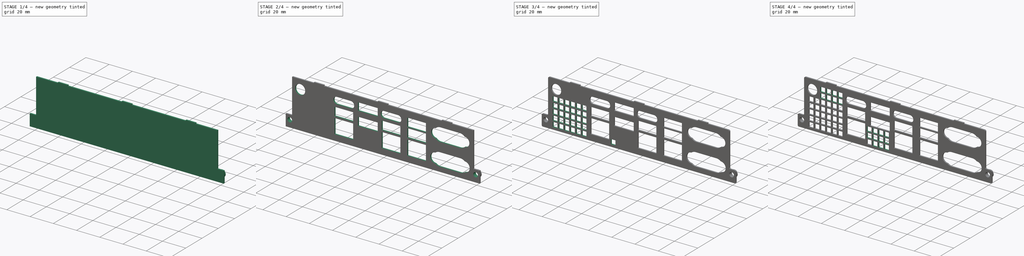
[diagram: build sequence overview — one tinted view per stage of 4, left to right]
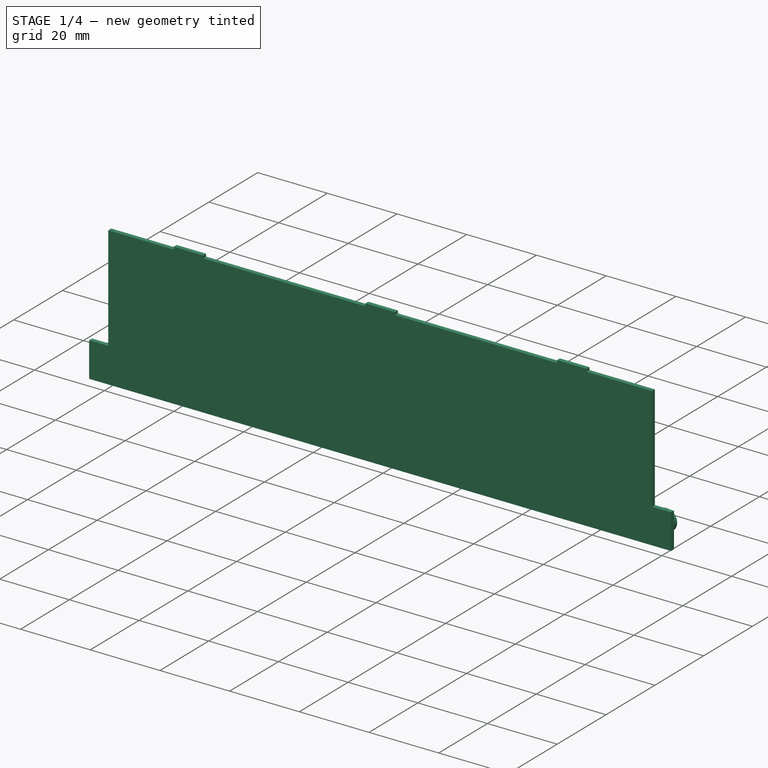
[diagram: stage 1 of 4 — iso view after this stage's code; geometry added in this stage tinted green]
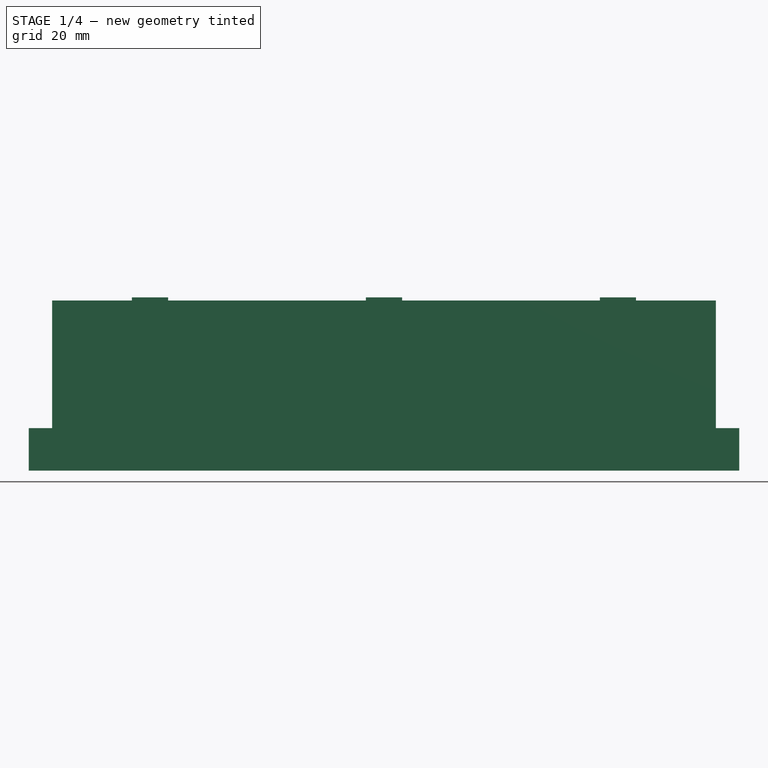
[diagram: stage 1 of 4 — front view after this stage's code; geometry added in this stage tinted green]
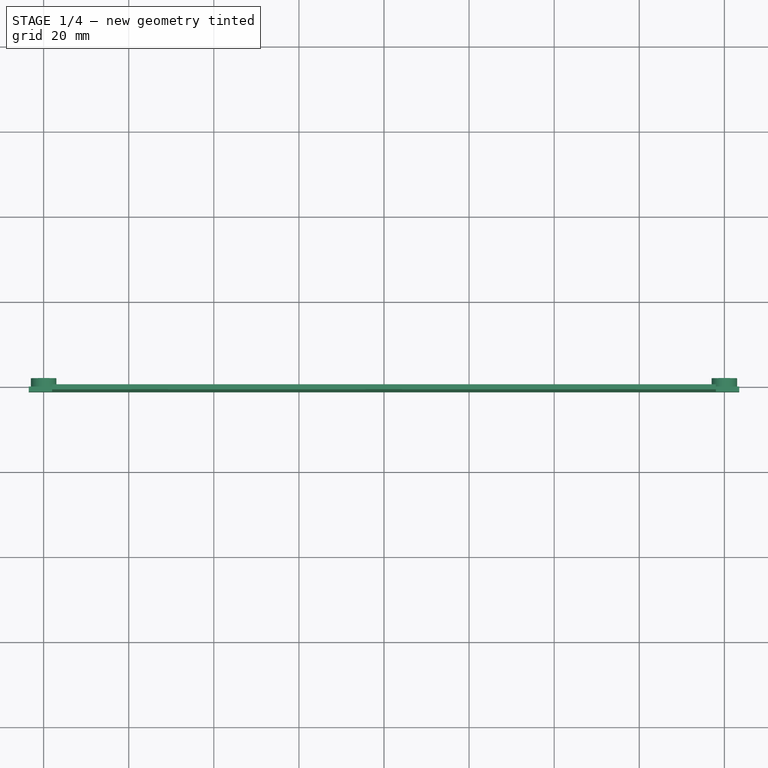
[diagram: stage 1 of 4 — top view after this stage's code; geometry added in this stage tinted green]
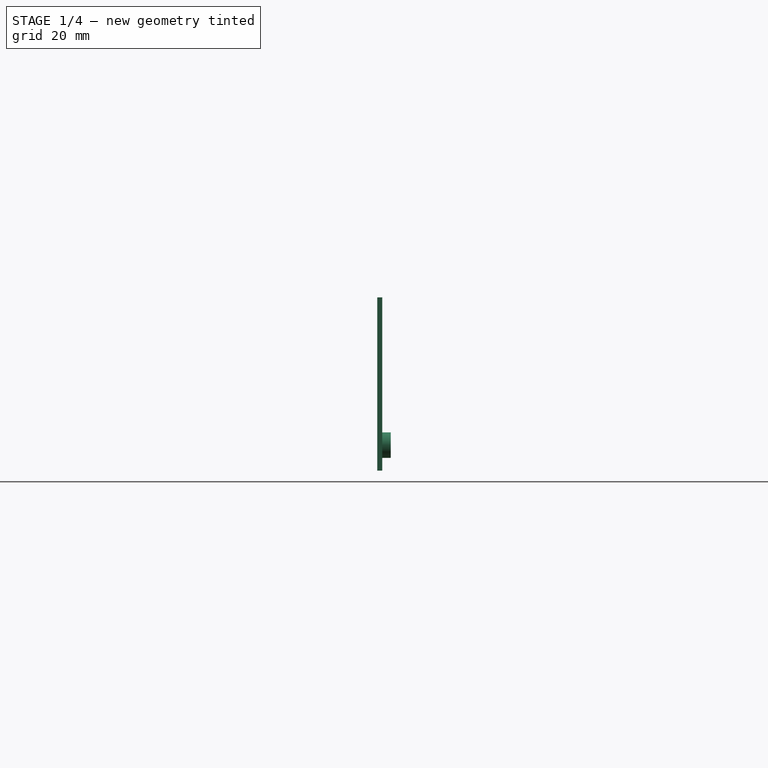
[diagram: stage 1 of 4 — right view after this stage's code; geometry added in this stage tinted green]
FCSTD DOCUMENT  (FreeCAD 1.0R39319 (Git))
Label: iosheild_export
License: All rights reserved
LicenseURL: https://en.wikipedia.org/wiki/All_rights_reserved
objects: Sketcher::SketchObject×7, PartDesign::LinearPattern×6, PartDesign::Pocket×5, PartDesign::MultiTransform×3, Part::Extrusion×2, Part::MultiFuse×1, PartDesign::FeatureBase×1, PartDesign::Fillet×1, PartDesign::Body×1
note: 56 computed .brp shape members not serialized (recipe doc carries the construction recipe); baked Part::Feature solids carry a one-line shape summary decoded from their .brp

FEATURE [Sketcher::SketchObject] Sketch001  label="outline"
  ArcFitTolerance = 1e-06
  AttachmentSupport = -> [XZ_Plane016]
  FullyConstrained = true
  MakeInternals = false
  MapMode = 5
  Placement = pos=(0,0,0) rot=(1,0,0;1.5708rad)
  sketch-geometry (20):
    g0: LineSegment StartX=-83.5 StartY=0 StartZ=0 EndX=83.5 EndY=0 EndZ=0
    g1: LineSegment StartX=83.5 StartY=0 StartZ=0 EndX=83.5 EndY=10 EndZ=0
    g2: LineSegment StartX=83.5 StartY=10 StartZ=0 EndX=78 EndY=10 EndZ=0
    g3: LineSegment StartX=78 StartY=10 StartZ=0 EndX=78 EndY=40 EndZ=0
    g4: LineSegment StartX=78 StartY=40 StartZ=0 EndX=59.25 EndY=40 EndZ=0
    g5: LineSegment StartX=59.25 StartY=40 StartZ=0 EndX=59.25 EndY=40.75 EndZ=0
    g6: LineSegment StartX=59.25 StartY=40.75 StartZ=0 EndX=50.75 EndY=40.75 EndZ=0
    g7: LineSegment StartX=50.75 StartY=40.75 StartZ=0 EndX=50.75 EndY=40 EndZ=0
    g8: LineSegment StartX=50.75 StartY=40 StartZ=0 EndX=4.25 EndY=40 EndZ=0
    g9: LineSegment StartX=4.25 StartY=40 StartZ=0 EndX=4.25 EndY=40.75 EndZ=0
    g10: LineSegment StartX=4.25 StartY=40.75 StartZ=0 EndX=-4.25 EndY=40.75 EndZ=0
    g11: LineSegment StartX=-4.25 StartY=40.75 StartZ=0 EndX=-4.25 EndY=40 EndZ=0
    g12: LineSegment StartX=-4.25 StartY=40 StartZ=0 EndX=-50.75 EndY=40 EndZ=0
    g13: LineSegment StartX=-50.75 StartY=40 StartZ=0 EndX=-50.75 EndY=40.75 EndZ=0
    g14: LineSegment StartX=-50.75 StartY=40.75 StartZ=0 EndX=-59.25 EndY=40.75 EndZ=0
    g15: LineSegment StartX=-59.25 StartY=40.75 StartZ=0 EndX=-59.25 EndY=40 EndZ=0
    g16: LineSegment StartX=-59.25 StartY=40 StartZ=0 EndX=-78 EndY=40 EndZ=0
    g17: LineSegment StartX=-78 StartY=40 StartZ=0 EndX=-78 EndY=10 EndZ=0
    g18: LineSegment StartX=-78 StartY=10 StartZ=0 EndX=-83.5 EndY=10 EndZ=0
    g19: LineSegment StartX=-83.5 StartY=10 StartZ=0 EndX=-83.5 EndY=0 EndZ=0
  constraints (60):
    c: Horizontal(g0)
    c: Coincident(g0,g1)
    c: Vertical(g1)
    c: Coincident(g1,g2)
    c: Horizontal(g2)
    c: Coincident(g2,g3)
    c: Coincident(g3,g4)
    c: Coincident(g4,g5)
    c: Vertical(g5)
    c: Coincident(g5,g6)
    c: Horizontal(g6)
    c: Coincident(g6,g7)
    c: Coincident(g7,g8)
    c: Horizontal(g8)
    c: Coincident(g8,g9)
    c: Coincident(g9,g10)
    c: Coincident(g10,g11)
    c: Coincident(g11,g12)
    c: Coincident(g12,g13)
    c: Coincident(g13,g14)
    c: Horizontal(g14)
    c: Coincident(g14,g15)
    c: Coincident(g15,g16)
    c: Horizontal(g16)
    c: Coincident(g16,g17)
    c: Vertical(g17)
    c: Coincident(g17,g18)
    c: Coincident(g18,g19)
    c: Coincident(g19,g0)
    c: Vertical(g19)
    c: Vertical(g15)
    c: Vertical(g13)
    c: Vertical(g11)
    c: Vertical(g9)
    c: Vertical(g7)
    c: Vertical(g3)
    c: Horizontal(g18)
    c: Horizontal(g12)
    c: Horizontal(g10)
    c: Horizontal(g4)
    c: DistanceX(g0,g0) = 167
    c: DistanceY(g0,g16) = 40
    c: DistanceX(g16,g3) = 156
    c: DistanceY(g0,g18) = 10
    c: DistanceY(g0,g1) = 10
    c: DistanceX(g16,g15) = 18.75
    c: DistanceX(g4,g3) = 18.75
    c: DistanceX(g6,g6) = 8.5
    c: DistanceX(g10,g10) = 8.5
    c: DistanceX(g14,g14) = 8.5
    c: DistanceX(g18,g18) = 5.5
    c: DistanceY(g4,g5) = 0.75
    c: DistanceY(g7,g6) = 0.75
    c: DistanceY(g8,g9) = 0.75
    c: DistanceY(g11,g10) = 0.75
    c: DistanceY(g12,g13) = 0.75
    c: DistanceY(g15,g14) = 0.75
    c: PointOnObject(g0,g-1)
    c: DistanceX(g0,g-1) = 83.5
    c: DistanceX(g12,g12) = 46.5
FEATURE [Sketcher::SketchObject] Sketch002  label="screw holes"
  ArcFitTolerance = 1e-06
  AttachmentSupport = -> [XZ_Plane016]
  FullyConstrained = true
  MakeInternals = false
  MapMode = 5
  Placement = pos=(0,0,0) rot=(1,0,0;1.5708rad)
  sketch-geometry (2):
    g0: Circle CenterX=-80 CenterY=6 CenterZ=0 NormalX=0 NormalY=0 NormalZ=1 AngleXU=0 Radius=2
    g1: Circle CenterX=80 CenterY=6 CenterZ=0 NormalX=0 NormalY=0 NormalZ=1 AngleXU=0 Radius=2
  constraints (6):
    c: Diameter(g0) = 4
    c: Diameter(g1) = 4
    c: DistanceY(g-1,g1) = 6
    c: DistanceX(g-1,g1) = 80
    c: DistanceX(g0,g-1) = 80
    c: DistanceY(g-1,g0) = 6
FEATURE [Sketcher::SketchObject] Sketch003  label="screw holes - wider"
  ArcFitTolerance = 1e-06
  AttachmentSupport = -> [XZ_Plane016]
  FullyConstrained = true
  MakeInternals = false
  MapMode = 5
  Placement = pos=(0,0,0) rot=(1,0,0;1.5708rad)
  sketch-geometry (2):
    g0: Circle CenterX=-80 CenterY=6 CenterZ=0 NormalX=0 NormalY=0 NormalZ=1 AngleXU=0 Radius=3
    g1: Circle CenterX=80 CenterY=6 CenterZ=0 NormalX=0 NormalY=0 NormalZ=1 AngleXU=0 Radius=3
  constraints (6):
    c: Diameter(g0) = 6
    c: Diameter(g1) = 6
    c: DistanceY(g-1,g1) = 6
    c: DistanceX(g-1,g1) = 80
    c: DistanceX(g0,g-1) = 80
    c: DistanceY(g-1,g0) = 6
FEATURE [Part::Extrusion] Extrude001  label="ExtrudedOutline"
  Base = -> Sketch001
  Dir = (0,-1,2e-16)
  DirMode = 2
  FaceMakerClass = Part::FaceMakerBullseye
  FaceMakerMode = 3
  LengthFwd = 1.2
  LengthRev = 0
  Solid = true
  Symmetric = false
FEATURE [Part::Extrusion] Extrude002  label="ExtrudedScrewHoles"
  Base = -> Sketch003
  Dir = (0,-1,2e-16)
  DirMode = 2
  FaceMakerClass = Part::FaceMakerBullseye
  FaceMakerMode = 3
  LengthFwd = 0
  LengthRev = 2
  Solid = true
  Symmetric = false
FEATURE [Part::MultiFuse] Fusion
  Shapes = -> [Extrude001,Extrude002]
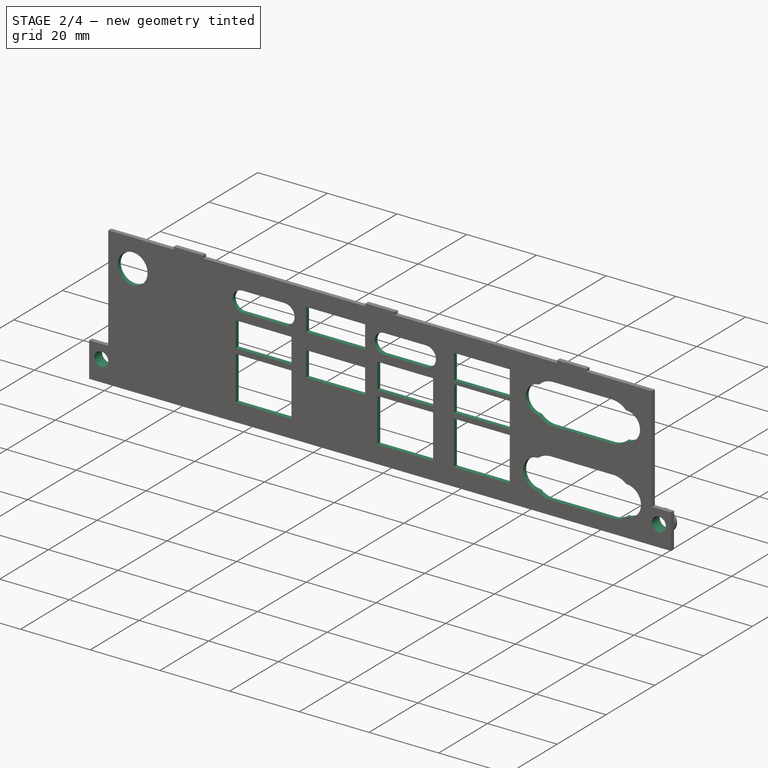
[diagram: stage 2 of 4 — iso view after this stage's code; geometry added in this stage tinted green]
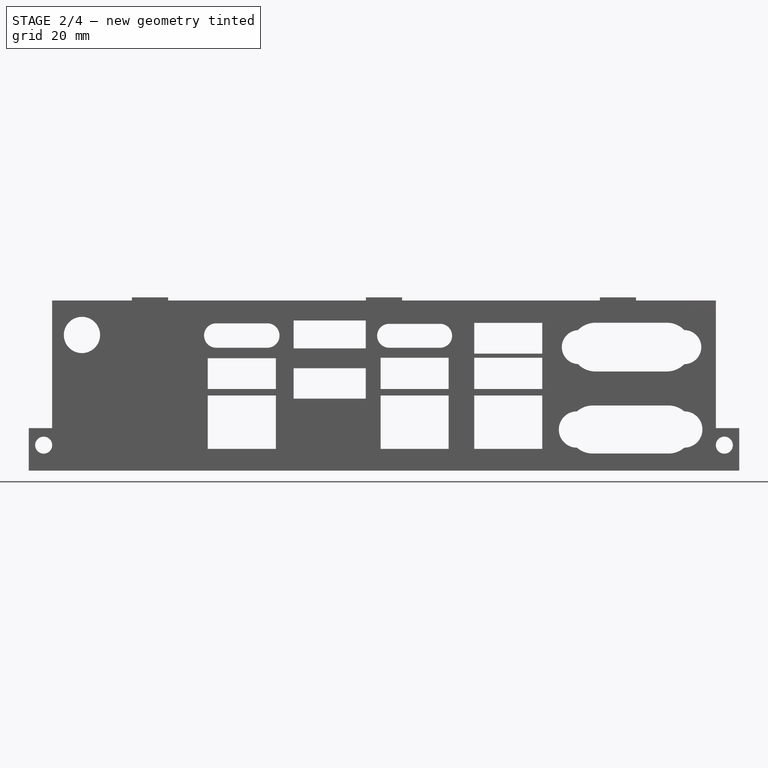
[diagram: stage 2 of 4 — front view after this stage's code; geometry added in this stage tinted green]
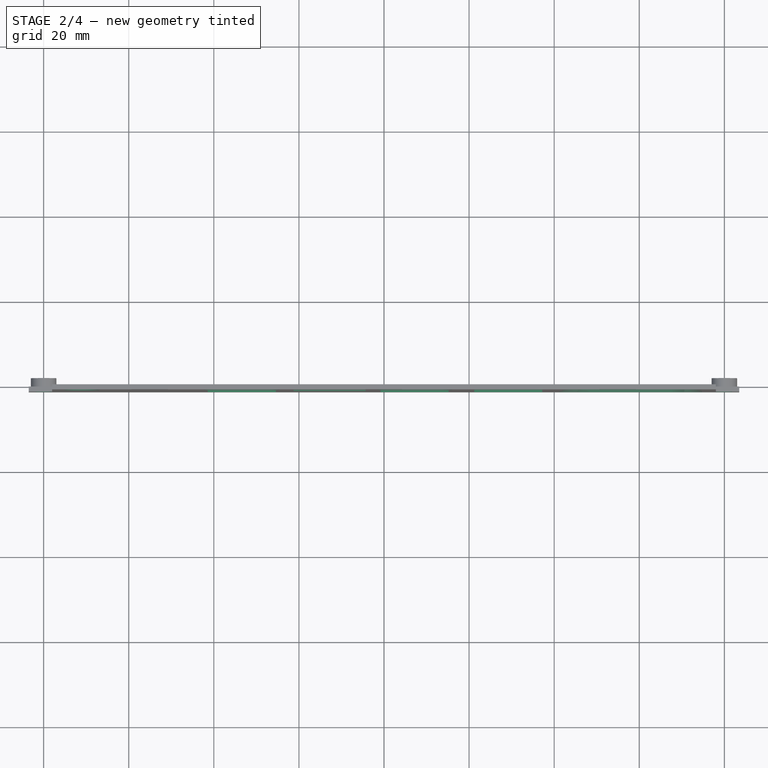
[diagram: stage 2 of 4 — top view after this stage's code; geometry added in this stage tinted green]
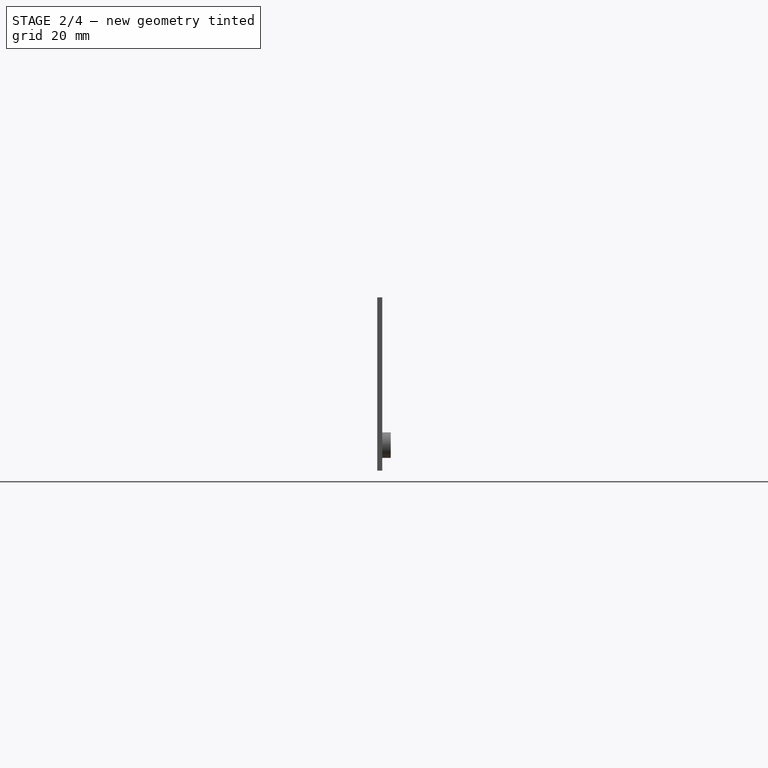
[diagram: stage 2 of 4 — right view after this stage's code; geometry added in this stage tinted green]
FEATURE [Sketcher::SketchObject] Sketch  label="ConnectorHoles"
  ArcFitTolerance = 1e-06
  AttachmentOffset = pos=(78,0,0) rot=(0,0,1;0rad)
  AttachmentSupport = -> [Fusion]
  FullyConstrained = true
  MakeInternals = false
  MapMode = 3
  Placement = pos=(78,0,0) rot=(1,0,0;1.5708rad)
  sketch-geometry (61):
    g0: Circle CenterX=-149 CenterY=31.9 CenterZ=0 NormalX=0 NormalY=0 NormalZ=1 AngleXU=0 Radius=4.26
    g1: ArcOfCircle CenterX=-32.2053 CenterY=29.0452 CenterZ=0 NormalX=0 NormalY=0 NormalZ=1 AngleXU=0 Radius=4 StartAngle=1.622 EndAngle=4.66362
    g2: ArcOfCircle CenterX=-7.42028 CenterY=29.0469 CenterZ=0 NormalX=0 NormalY=0 NormalZ=1 AngleXU=0 Radius=4 StartAngle=4.71239 EndAngle=7.85245
    g3: ArcOfCircle CenterX=-28.2975 CenterY=29.05 CenterZ=0 NormalX=0 NormalY=0 NormalZ=1 AngleXU=0 Radius=5.73 StartAngle=1.5708 EndAngle=2.37131
    g4: ArcOfCircle CenterX=-11.52 CenterY=29.05 CenterZ=0 NormalX=0 NormalY=0 NormalZ=1 AngleXU=0 Radius=5.73 StartAngle=4.71239 EndAngle=5.50971
    g5: LineSegment StartX=-28.2975 StartY=34.78 StartZ=0 EndX=-11.5175 EndY=34.78 EndZ=0
    g6: LineSegment StartX=-28.3 StartY=23.32 StartZ=0 EndX=-11.52 EndY=23.32 EndZ=0
    g7: ArcOfCircle CenterX=-32.64 CenterY=9.67349 CenterZ=0 NormalX=0 NormalY=0 NormalZ=1 AngleXU=0 Radius=4.27 StartAngle=1.5708 EndAngle=4.71239
    g8: ArcOfCircle CenterX=-7.42 CenterY=9.67697 CenterZ=0 NormalX=0 NormalY=0 NormalZ=1 AngleXU=0 Radius=4.27 StartAngle=4.71239 EndAngle=7.85586
    g9: ArcOfCircle CenterX=-28.95 CenterY=9.67349 CenterZ=0 NormalX=0 NormalY=0 NormalZ=1 AngleXU=0 Radius=5.64349 StartAngle=1.5708 EndAngle=2.28346
    g10: ArcOfCircle CenterX=-11.114 CenterY=9.67349 CenterZ=0 NormalX=0 NormalY=0 NormalZ=1 AngleXU=0 Radius=5.64349 StartAngle=4.71239 EndAngle=5.42599
    g11: LineSegment StartX=-28.95 StartY=15.317 StartZ=0 EndX=-11.1 EndY=15.317 EndZ=0
    g12: LineSegment StartX=-28.95 StartY=4.03 StartZ=0 EndX=-11.114 EndY=4.03 EndZ=0
    g13: LineSegment StartX=-56.8 StartY=34.74 StartZ=0 EndX=-56.8 EndY=27.51 EndZ=0
    g14: LineSegment StartX=-56.8 StartY=27.51 StartZ=0 EndX=-40.8 EndY=27.51 EndZ=0
    g15: LineSegment StartX=-40.8 StartY=27.51 StartZ=0 EndX=-40.8 EndY=34.74 EndZ=0
    g16: LineSegment StartX=-40.8 StartY=34.74 StartZ=0 EndX=-56.8 EndY=34.74 EndZ=0
    g17: LineSegment StartX=-56.8 StartY=26.55 StartZ=0 EndX=-56.8 EndY=19.19 EndZ=0
    g18: LineSegment StartX=-56.8 StartY=19.19 StartZ=0 EndX=-40.8 EndY=19.19 EndZ=0
    g19: LineSegment StartX=-40.8 StartY=19.19 StartZ=0 EndX=-40.8 EndY=26.55 EndZ=0
    g20: LineSegment StartX=-40.8 StartY=26.55 StartZ=0 EndX=-56.8 EndY=26.55 EndZ=0
    g21: LineSegment StartX=-56.8 StartY=17.68 StartZ=0 EndX=-56.8 EndY=5.12 EndZ=0
    g22: LineSegment StartX=-56.8 StartY=5.12 StartZ=0 EndX=-40.8 EndY=5.12 EndZ=0
    g23: LineSegment StartX=-40.8 StartY=5.12 StartZ=0 EndX=-40.8 EndY=17.68 EndZ=0
    g24: LineSegment StartX=-40.8 StartY=17.68 StartZ=0 EndX=-56.8 EndY=17.68 EndZ=0
    g25: ArcOfCircle CenterX=-105.43 CenterY=31.77 CenterZ=0 NormalX=0 NormalY=0 NormalZ=1 AngleXU=0 Radius=2.87 StartAngle=4.71239 EndAngle=7.85398
    g26: ArcOfCircle CenterX=-117.43 CenterY=31.77 CenterZ=0 NormalX=0 NormalY=0 NormalZ=1 AngleXU=0 Radius=2.87 StartAngle=1.5708 EndAngle=4.71239
    g27: LineSegment StartX=-105.43 StartY=28.9 StartZ=0 EndX=-117.43 EndY=28.9 EndZ=0
    g28: LineSegment StartX=-105.43 StartY=34.64 StartZ=0 EndX=-117.43 EndY=34.64 EndZ=0
    g29: ArcOfCircle CenterX=-76.8 CenterY=31.71 CenterZ=0 NormalX=0 NormalY=0 NormalZ=1 AngleXU=0 Radius=2.81 StartAngle=1.5708 EndAngle=4.71239
    g30: ArcOfCircle CenterX=-64.8 CenterY=31.71 CenterZ=0 NormalX=0 NormalY=0 NormalZ=1 AngleXU=0 Radius=2.81 StartAngle=4.71239 EndAngle=7.85398
    g31: LineSegment StartX=-76.8 StartY=34.52 StartZ=0 EndX=-64.8 EndY=34.52 EndZ=0
    g32: LineSegment StartX=-76.8 StartY=28.9 StartZ=0 EndX=-64.8 EndY=28.9 EndZ=0
    g33: LineSegment StartX=-119.43 StartY=26.42 StartZ=0 EndX=-119.43 EndY=19.19 EndZ=0
    g34: LineSegment StartX=-119.43 StartY=19.19 StartZ=0 EndX=-103.43 EndY=19.19 EndZ=0
    g35: LineSegment StartX=-103.43 StartY=19.19 StartZ=0 EndX=-103.43 EndY=26.42 EndZ=0
    g36: LineSegment StartX=-103.43 StartY=26.42 StartZ=0 EndX=-119.43 EndY=26.42 EndZ=0
    g37: LineSegment StartX=-103.43 StartY=5.12 StartZ=0 EndX=-103.43 EndY=17.68 EndZ=0
    g38: LineSegment StartX=-103.43 StartY=17.68 StartZ=0 EndX=-119.43 EndY=17.68 EndZ=0
    g39: LineSegment StartX=-119.43 StartY=17.68 StartZ=0 EndX=-119.43 EndY=5.12 EndZ=0
    g40: LineSegment StartX=-119.43 StartY=5.12 StartZ=0 EndX=-103.43 EndY=5.12 EndZ=0
    g41: LineSegment StartX=-99.25 StartY=35.31 StartZ=0 EndX=-99.25 EndY=28.76 EndZ=0
    g42: LineSegment StartX=-99.25 StartY=28.76 StartZ=0 EndX=-82.3 EndY=28.76 EndZ=0
    g43: LineSegment StartX=-82.3 StartY=28.76 StartZ=0 EndX=-82.3 EndY=35.31 EndZ=0
    g44: LineSegment StartX=-82.3 StartY=35.31 StartZ=0 EndX=-99.25 EndY=35.31 EndZ=0
    g45: LineSegment StartX=-99.25 StartY=24.09 StartZ=0 EndX=-99.25 EndY=16.95 EndZ=0
    g46: LineSegment StartX=-99.25 StartY=16.95 StartZ=0 EndX=-82.3 EndY=16.95 EndZ=0
    g47: LineSegment StartX=-82.3 StartY=16.95 StartZ=0 EndX=-82.3 EndY=24.09 EndZ=0
    g48: LineSegment StartX=-82.3 StartY=24.09 StartZ=0 EndX=-99.25 EndY=24.09 EndZ=0
    g49: LineSegment StartX=-78.8 StartY=26.55 StartZ=0 EndX=-78.8 EndY=19.19 EndZ=0
    g50: LineSegment StartX=-78.8 StartY=19.19 StartZ=0 EndX=-62.8 EndY=19.19 EndZ=0
    g51: LineSegment StartX=-62.8 StartY=19.19 StartZ=0 EndX=-62.8 EndY=26.55 EndZ=0
    g52: LineSegment StartX=-62.8 StartY=26.55 StartZ=0 EndX=-78.8 EndY=26.55 EndZ=0
    g53: LineSegment StartX=-78.8 StartY=17.68 StartZ=0 EndX=-78.8 EndY=5.12 EndZ=0
    g54: LineSegment StartX=-78.8 StartY=5.12 StartZ=0 EndX=-62.8 EndY=5.12 EndZ=0
    g55: LineSegment StartX=-62.8 StartY=5.12 StartZ=0 EndX=-62.8 EndY=17.68 EndZ=0
    g56: LineSegment StartX=-62.8 StartY=17.68 StartZ=0 EndX=-78.8 EndY=17.68 EndZ=0
    g57: ArcOfCircle CenterX=-28.2975 CenterY=29.05 CenterZ=0 NormalX=0 NormalY=0 NormalZ=1 AngleXU=0 Radius=5.73 StartAngle=3.91431 EndAngle=4.71195
    g58: ArcOfCircle CenterX=-11.52 CenterY=29.05 CenterZ=0 NormalX=0 NormalY=0 NormalZ=1 AngleXU=0 Radius=5.73 StartAngle=0.771946 EndAngle=1.57036
    g59: ArcOfCircle CenterX=-11.114 CenterY=9.67349 CenterZ=0 NormalX=0 NormalY=0 NormalZ=1 AngleXU=0 Radius=5.64349 StartAngle=0.859076 EndAngle=1.56831
    g60: ArcOfCircle CenterX=-28.95 CenterY=9.67349 CenterZ=0 NormalX=0 NormalY=0 NormalZ=1 AngleXU=0 Radius=5.64349 StartAngle=3.99973 EndAngle=4.71239
  constraints (187):
    c: Equal(g1,g2)
    c: Tangent(g3,g5) = 1.5708
    c: Coincident(g57,g6) = -1.5708
    c: Coincident(g58,g5) = 1.5708
    c: Tangent(g4,g6) = -1.5708
    c: Equal(g3,g4)
    c: Horizontal(g6)
    c: Equal(g7,g8)
    c: Tangent(g9,g11) = 1.5708
    c: Coincident(g60,g12) = -1.5708
    c: Coincident(g59,g11) = 1.5708
    c: Tangent(g10,g12) = -1.5708
    c: Equal(g9,g10)
    c: Horizontal(g12)
    c: Coincident(g13,g14)
    c: Coincident(g14,g15)
    c: Coincident(g15,g16)
    c: Coincident(g16,g13)
    c: Vertical(g13)
    c: Vertical(g15)
    c: Horizontal(g14)
    c: Horizontal(g16)
    c: Coincident(g17,g18)
    c: Coincident(g18,g19)
    c: Coincident(g19,g20)
    c: Coincident(g20,g17)
    c: Vertical(g17)
    c: Vertical(g19)
    c: Horizontal(g18)
    c: Horizontal(g20)
    c: Coincident(g21,g22)
    c: Coincident(g22,g23)
    c: Coincident(g23,g24)
    c: Coincident(g24,g21)
    c: Vertical(g21)
    c: Vertical(g23)
    c: Horizontal(g22)
    c: Horizontal(g24)
    c: Tangent(g25,g27) = 1.5708
    c: Tangent(g25,g28) = -1.5708
    c: Tangent(g26,g27) = 1.5708
    c: Tangent(g26,g28) = -1.5708
    c: Equal(g25,g26)
    c: Horizontal(g28)
    c: Tangent(g29,g31) = 1.5708
    c: Tangent(g29,g32) = -1.5708
    c: Tangent(g30,g31) = 1.5708
    c: Tangent(g30,g32) = -1.5708
    c: Equal(g29,g30)
    c: Horizontal(g32)
    c: Coincident(g33,g34)
    c: Coincident(g34,g35)
    c: Coincident(g35,g36)
    c: Coincident(g36,g33)
    c: Vertical(g33)
    c: Vertical(g35)
    c: Horizontal(g34)
    c: Horizontal(g36)
    c: Coincident(g37,g38)
    c: Coincident(g38,g39)
    c: Coincident(g39,g40)
    c: Coincident(g40,g37)
    c: Vertical(g37)
    c: Vertical(g39)
    c: Horizontal(g38)
    c: Horizontal(g40)
    c: Coincident(g41,g42)
    c: Coincident(g42,g43)
    c: Coincident(g43,g44)
    c: Coincident(g44,g41)
    c: Vertical(g41)
    c: Vertical(g43)
    c: Horizontal(g42)
    c: Horizontal(g44)
    c: Coincident(g45,g46)
    c: Coincident(g46,g47)
    c: Coincident(g47,g48)
    c: Coincident(g48,g45)
    c: Vertical(g45)
    c: Vertical(g47)
    c: Horizontal(g46)
    c: Horizontal(g48)
    c: Coincident(g49,g50)
    c: Coincident(g50,g51)
    c: Coincident(g51,g52)
    c: Coincident(g52,g49)
    c: Vertical(g49)
    c: Vertical(g51)
    c: Horizontal(g50)
    c: Horizontal(g52)
    c: Coincident(g53,g54)
    c: Coincident(g54,g55)
    c: Coincident(g55,g56)
    c: Coincident(g56,g53)
    c: Vertical(g53)
    c: Vertical(g55)
    c: Horizontal(g54)
    c: Horizontal(g56)
    c: DistanceX(g13,g17) = 0
    c: DistanceX(g17,g21) = 0
    c: DistanceX(g18,g14) = 0
    c: DistanceX(g18,g23) = 0
    c: DistanceX(g38,g33) = 0
    c: DistanceX(g34,g37) = 0
    c: DistanceX(g50,g55) = 0
    c: DistanceX(g49,g53) = 0
    c: DistanceX(g42,g47) = 0
    c: DistanceX(g45,g41) = 0
    c: DistanceY(g17,g51) = 0
    c: DistanceY(g21,g55) = 0
    c: DistanceY(g53,g37) = 0
    c: DistanceY(g34,g49) = 0
    c: DistanceY(g25,g29) = 0
    c: DistanceY(g-1,g60) = 4.03
    c: DistanceY(g-1,g57) = 23.32
    c: DistanceY(g-1,g39) = 5.12
    c: DistanceY(g-1,g33) = 19.19
    c: DistanceY(g39,g38) = 12.56
    c: DistanceY(g33,g33) = 7.23
    c: DistanceY(g-1,g26) = 28.9
    c: DistanceY(g26,g26) = 5.74
    c: DistanceY(g-1,g0) = 31.9
    c: Radius(g0) = 4.26
    c: DistanceY(g-1,g53) = 5.12
    c: DistanceY(g-1,g21) = 5.12
    c: DistanceY(g21,g17) = 1.51
    c: DistanceX(g33,g35) = 16
    c: DistanceX(g49,g51) = 16
    c: DistanceX(g17,g19) = 16
    c: DistanceX(g0,g-1) = 149
    c: DistanceY(g17,g13) = 0.96
    c: DistanceY(g17,g17) = 7.36
    c: DistanceY(g13,g13) = 7.23
    c: DistanceX(g15,g-1) = 40.8
    c: DistanceY(g30,g30) = 5.62
    c: DistanceX(g3,g58) = 16.78
    c: PointOnObject(g1,g57)
    c: DistanceX(g9,g59) = 17.85
    c: PointOnObject(g8,g59)
    c: DistanceY(g1,g1) = 7.99
    c: DistanceY(g57,g1) = 1.73
    c: DistanceY(g8,g59) = 1.37
    c: DistanceY(g8,g8) = 8.54
    c: DistanceX(g1,g-1) = 32.41
    c: DistanceX(g7,g-1) = 32.64
    c: DistanceY(g42,g43) = 6.55
    c: DistanceY(g47,g42) = 4.67
    c: DistanceY(g46,g47) = 7.14
    c: DistanceY(g-1,g45) = 16.95
    c: DistanceX(g1,g2) = 24.98
    c: PointOnObject(g2,g58)
    c: Radius(g1) = 4
    c: Radius(g4) = 5.73
    c: DistanceX(g2,g2) = 0
    c: Equal(g3,g57)
    c: Coincident(g3,g1)
    c: PointOnObject(g57,g1)
    c: Coincident(g3,g57)
    c: Equal(g4,g58)
    c: Coincident(g4,g2)
    c: PointOnObject(g58,g2)
    c: Coincident(g4,g58)
    c: DistanceX(g6,g-1) = 28.3
    c: DistanceX(g4,g-1) = 11.52
    c: Equal(g10,g59)
    c: Coincident(g10,g8)
    c: PointOnObject(g59,g8)
    c: Coincident(g10,g59)
    c: Equal(g9,g60)
    c: Coincident(g9,g7)
    c: PointOnObject(g60,g7)
    c: Coincident(g9,g60)
    c: DistanceX(g8,g-1) = 7.42
    c: DistanceX(g7,g-1) = 32.64
    c: PointOnObject(g7,g60)
    c: DistanceX(g11,g-1) = 11.1
    c: DistanceX(g12,g-1) = 28.95
    c: DistanceX(g8,g-1) = 7.42
    c: DistanceX(g7,g-1) = 32.64
    c: DistanceX(g33,g26) = 2
    c: DistanceX(g35,g45) = 4.18
    c: DistanceX(g25,g35) = 2
    c: DistanceX(g45,g46) = 16.95
    c: DistanceX(g47,g49) = 3.5
    c: DistanceX(g49,g29) = 2
    c: DistanceX(g30,g51) = 2
    c: DistanceX(g51,g17) = 6
FEATURE [PartDesign::FeatureBase] BaseFeature
  BaseFeature = -> Fusion
  Suppressed = false
FEATURE [PartDesign::Pocket] Pocket  label="ScrewHolesCut"
  BaseFeature = -> BaseFeature
  Direction = (0,1,-2e-16)
  Length = 5
  Length2 = 5
  Midplane = true
  Profile = -> Sketch002
  ReferenceAxis = -> Sketch002 [N_Axis]
  Refine = true
  Suppressed = false
  Type = 0
FEATURE [PartDesign::Pocket] Pocket001  label="ConnectorHolesCut"
  BaseFeature = -> Pocket
  Direction = (0,1,-2e-16)
  Length = 5
  Length2 = 5
  Midplane = true
  Profile = -> Sketch
  ReferenceAxis = -> Sketch [N_Axis]
  Refine = true
  Suppressed = false
  Type = 0
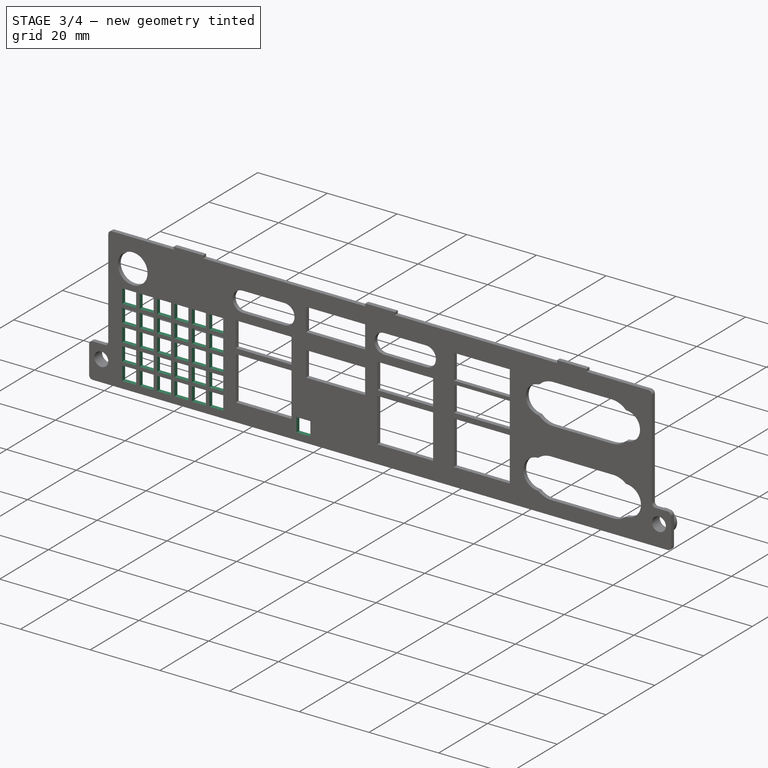
[diagram: stage 3 of 4 — iso view after this stage's code; geometry added in this stage tinted green]
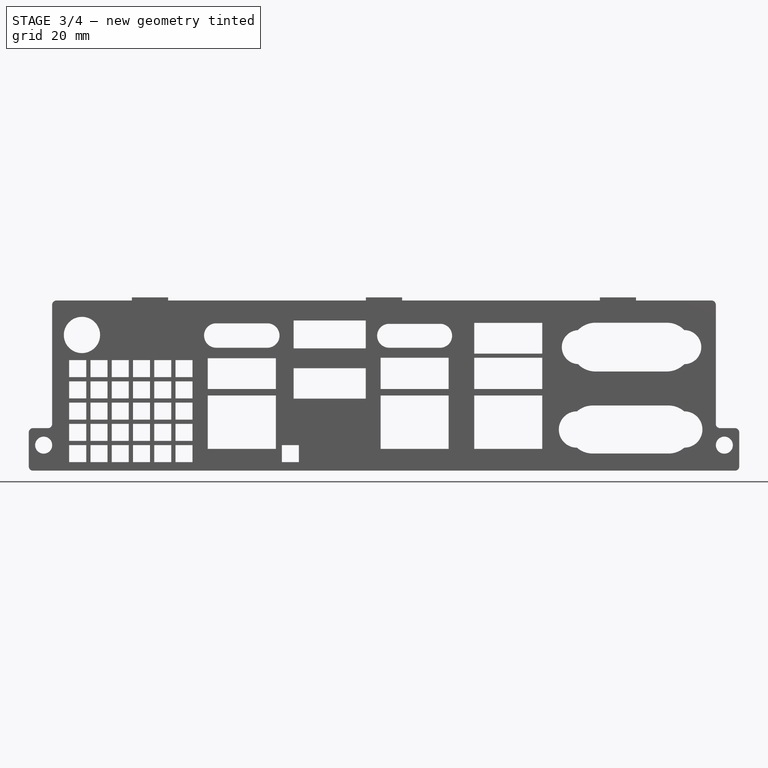
[diagram: stage 3 of 4 — front view after this stage's code; geometry added in this stage tinted green]
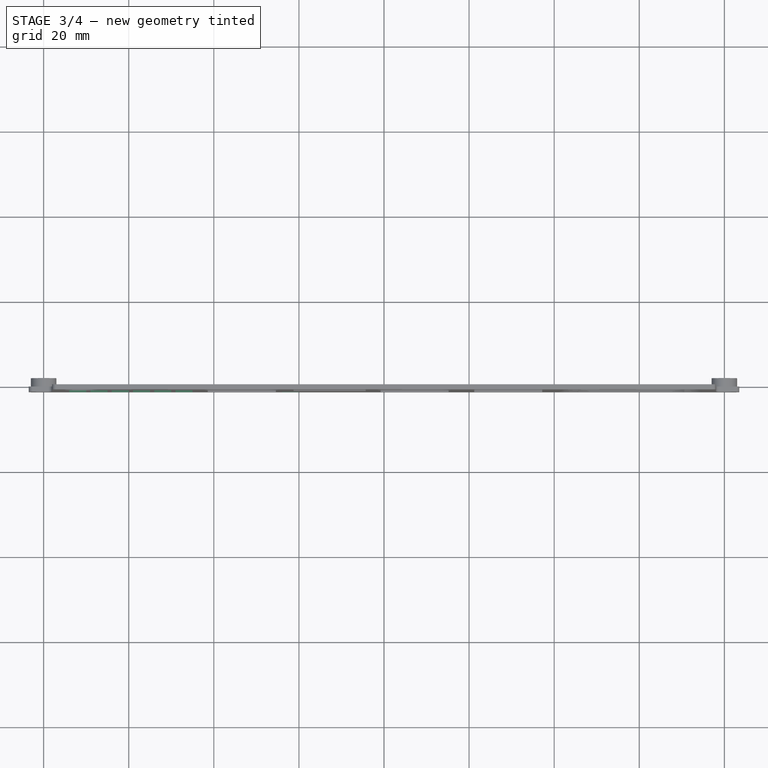
[diagram: stage 3 of 4 — top view after this stage's code; geometry added in this stage tinted green]
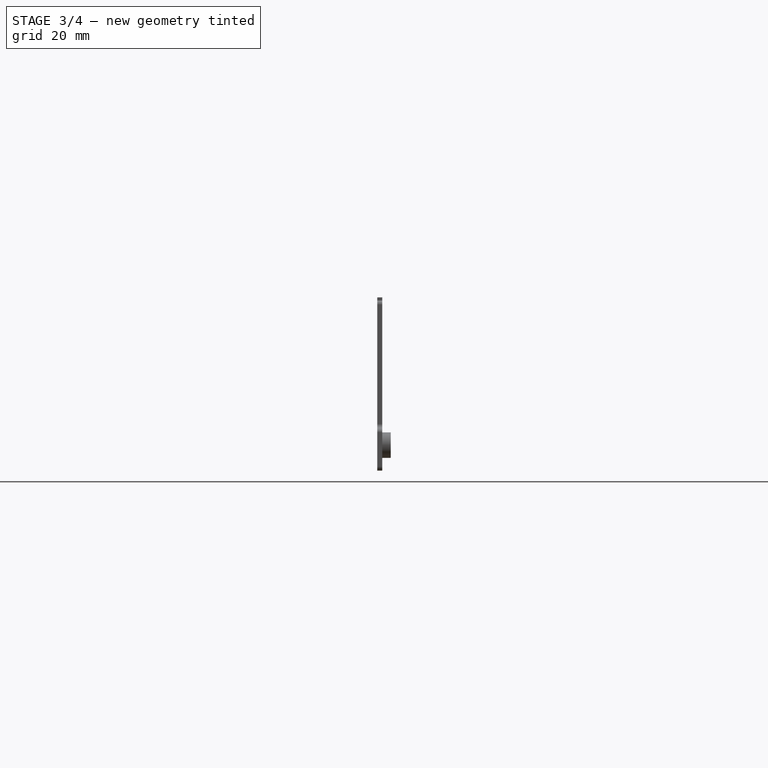
[diagram: stage 3 of 4 — right view after this stage's code; geometry added in this stage tinted green]
FEATURE [PartDesign::Fillet] Fillet
  Base = -> Pocket001 [Edge1,Edge5,Edge171,Edge173,Edge174,Edge8,Edge2,Edge172]
  BaseFeature = -> Pocket001
  Radius = 1
  Refine = true
  SupportTransform = false
  Suppressed = false
  UseAllEdges = false
FEATURE [Sketcher::SketchObject] Sketch004  label="VentHole"
  ArcFitTolerance = 1e-06
  AttachmentSupport = -> [Fillet]
  FullyConstrained = true
  MakeInternals = false
  MapMode = 5
  Placement = pos=(0,-1.2,0) rot=(1,0,0;1.5708rad)
  sketch-geometry (4):
    g0: LineSegment StartX=-49 StartY=6 StartZ=0 EndX=-49 EndY=2 EndZ=0
    g1: LineSegment StartX=-49 StartY=2 StartZ=0 EndX=-45 EndY=2 EndZ=0
    g2: LineSegment StartX=-45 StartY=2 StartZ=0 EndX=-45 EndY=6 EndZ=0
    g3: LineSegment StartX=-45 StartY=6 StartZ=0 EndX=-49 EndY=6 EndZ=0
  constraints (12):
    c: Coincident(g0,g1)
    c: Coincident(g1,g2)
    c: Coincident(g2,g3)
    c: Coincident(g3,g0)
    c: Vertical(g0)
    c: Vertical(g2)
    c: Horizontal(g1)
    c: Horizontal(g3)
    c: DistanceX(g3,g3) = 4
    c: DistanceY(g0,g0) = 4
    c: DistanceY(g-1,g1) = 2
    c: DistanceX(g1,g-1) = 45
FEATURE [PartDesign::Pocket] Pocket002
  BaseFeature = -> Fillet
  Direction = (0,1,-2e-16)
  Length = 5
  Length2 = 5
  Profile = -> Sketch004
  ReferenceAxis = -> Sketch004 [N_Axis]
  Refine = true
  Suppressed = false
  Type = 1
FEATURE [PartDesign::LinearPattern] LinearPattern
  Direction = -> Sketch004 [H_Axis]
  Length = 25
  Mode = 1
  Occurrences = 6
  Offset = 5
  Refine = true
  Reversed = true
  Suppressed = false
  TransformMode = 0
FEATURE [PartDesign::LinearPattern] LinearPattern001
  Direction = -> Sketch004 [V_Axis]
  Length = 20
  Mode = 1
  Occurrences = 5
  Offset = 5
  Refine = true
  Suppressed = false
  TransformMode = 0
FEATURE [PartDesign::MultiTransform] MultiTransform
  BaseFeature = -> Pocket002
  Originals = -> [Pocket002]
  Refine = true
  Suppressed = false
  TransformMode = 0
  Transformations = -> [LinearPattern,LinearPattern001]
FEATURE [Sketcher::SketchObject] Sketch005  label="VentHole2"
  ArcFitTolerance = 1e-06
  AttachmentSupport = -> [MultiTransform]
  FullyConstrained = true
  MakeInternals = false
  MapMode = 5
  Placement = pos=(0,-1.2,0) rot=(1,0,0;1.5708rad)
  sketch-geometry (4):
    g0: LineSegment StartX=-24 StartY=6 StartZ=0 EndX=-24 EndY=2 EndZ=0
    g1: LineSegment StartX=-24 StartY=2 StartZ=0 EndX=-20 EndY=2 EndZ=0
    g2: LineSegment StartX=-20 StartY=2 StartZ=0 EndX=-20 EndY=6 EndZ=0
    g3: LineSegment StartX=-20 StartY=6 StartZ=0 EndX=-24 EndY=6 EndZ=0
  constraints (12):
    c: Coincident(g0,g1)
    c: Coincident(g1,g2)
    c: Coincident(g2,g3)
    c: Coincident(g3,g0)
    c: Vertical(g0)
    c: Vertical(g2)
    c: Horizontal(g1)
    c: Horizontal(g3)
    c: DistanceY(g1,g2) = 4
    c: DistanceX(g0,g2) = 4
    c: DistanceY(g-1,g1) = 2
    c: DistanceX(g1,g-1) = 20
FEATURE [PartDesign::Pocket] Pocket003
  BaseFeature = -> MultiTransform
  Direction = (0,1,-2e-16)
  Length = 5
  Length2 = 5
  Profile = -> Sketch005
  ReferenceAxis = -> Sketch005 [N_Axis]
  Refine = true
  Suppressed = false
  Type = 1
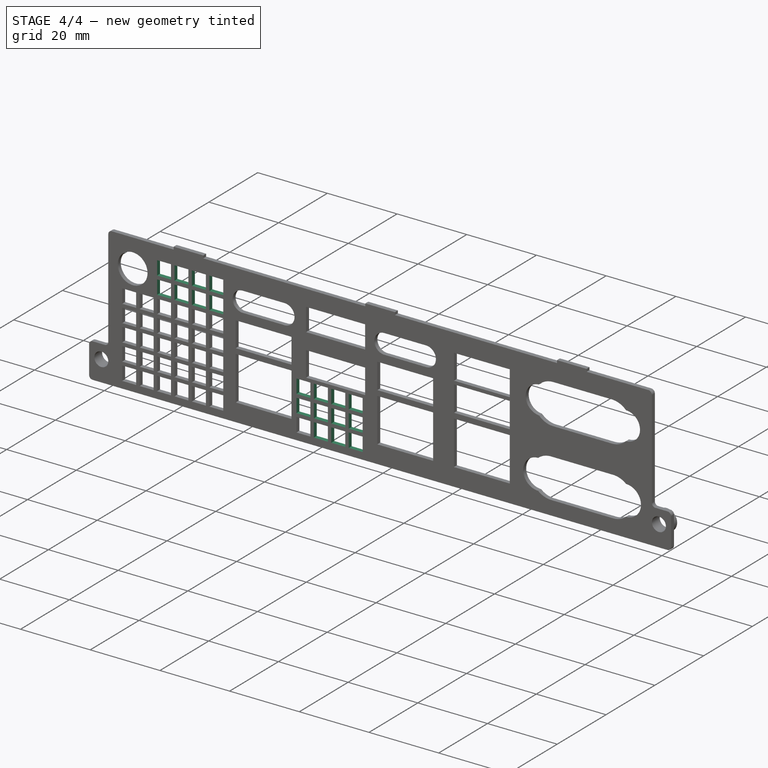
[diagram: stage 4 of 4 — iso view after this stage's code; geometry added in this stage tinted green]
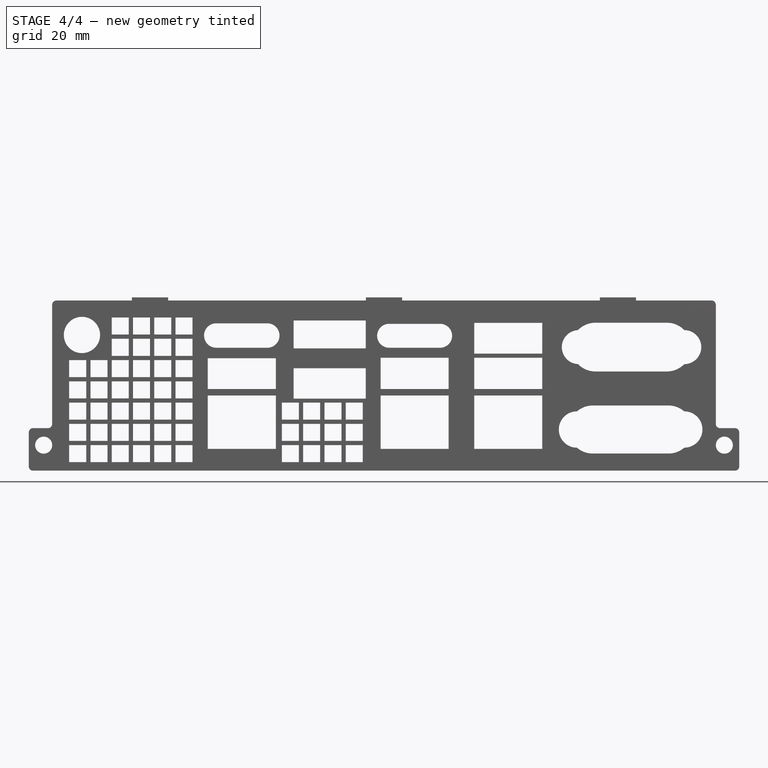
[diagram: stage 4 of 4 — front view after this stage's code; geometry added in this stage tinted green]
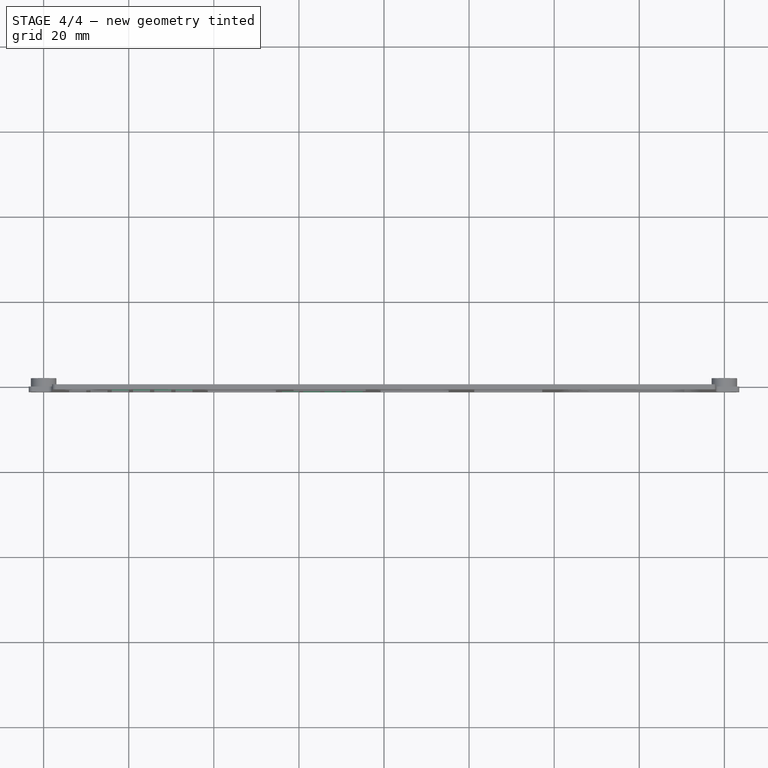
[diagram: stage 4 of 4 — top view after this stage's code; geometry added in this stage tinted green]
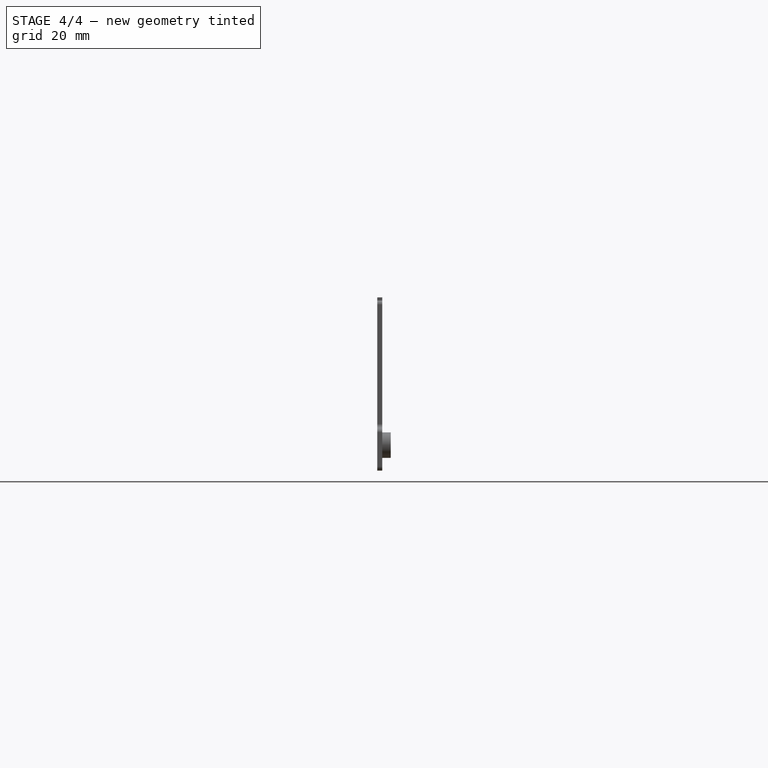
[diagram: stage 4 of 4 — right view after this stage's code; geometry added in this stage tinted green]
FEATURE [PartDesign::LinearPattern] LinearPattern002
  Direction = -> Sketch005 [H_Axis]
  Length = 15
  Mode = 1
  Occurrences = 4
  Offset = 5
  Refine = true
  Suppressed = false
  TransformMode = 0
FEATURE [PartDesign::LinearPattern] LinearPattern003
  Direction = -> Sketch005 [V_Axis]
  Length = 10
  Mode = 1
  Occurrences = 3
  Offset = 5
  Refine = true
  Suppressed = false
  TransformMode = 0
FEATURE [PartDesign::MultiTransform] MultiTransform001
  BaseFeature = -> Pocket003
  Originals = -> [Pocket003]
  Refine = true
  Suppressed = false
  TransformMode = 0
  Transformations = -> [LinearPattern002,LinearPattern003]
FEATURE [Sketcher::SketchObject] Sketch006
  ArcFitTolerance = 1e-06
  AttachmentSupport = -> [MultiTransform001]
  FullyConstrained = true
  MakeInternals = false
  MapMode = 5
  Placement = pos=(0,-1.2,0) rot=(1,0,0;1.5708rad)
  sketch-geometry (4):
    g0: LineSegment StartX=-49 StartY=31 StartZ=0 EndX=-49 EndY=27 EndZ=0
    g1: LineSegment StartX=-49 StartY=27 StartZ=0 EndX=-45 EndY=27 EndZ=0
    g2: LineSegment StartX=-45 StartY=27 StartZ=0 EndX=-45 EndY=31 EndZ=0
    g3: LineSegment StartX=-45 StartY=31 StartZ=0 EndX=-49 EndY=31 EndZ=0
  constraints (12):
    c: Coincident(g0,g1)
    c: Coincident(g1,g2)
    c: Coincident(g2,g3)
    c: Coincident(g3,g0)
    c: Vertical(g0)
    c: Vertical(g2)
    c: Horizontal(g1)
    c: Horizontal(g3)
    c: DistanceX(g0,g2) = 4
    c: DistanceY(g1,g2) = 4
    c: DistanceX(g1,g-1) = 45
    c: DistanceY(g-1,g0) = 27
FEATURE [PartDesign::Pocket] Pocket004
  BaseFeature = -> MultiTransform001
  Direction = (0,1,-2e-16)
  Length = 5
  Length2 = 5
  Profile = -> Sketch006
  ReferenceAxis = -> Sketch006 [N_Axis]
  Refine = true
  Suppressed = false
  Type = 1
FEATURE [PartDesign::LinearPattern] LinearPattern004
  Direction = -> Sketch006 [H_Axis]
  Length = 15
  Mode = 1
  Occurrences = 4
  Offset = 5
  Refine = true
  Reversed = true
  Suppressed = false
  TransformMode = 0
FEATURE [PartDesign::LinearPattern] LinearPattern005
  Direction = -> Sketch006 [V_Axis]
  Length = 5
  Mode = 1
  Occurrences = 2
  Offset = 5
  Refine = true
  Suppressed = false
  TransformMode = 0
FEATURE [PartDesign::MultiTransform] MultiTransform002
  BaseFeature = -> Pocket004
  Originals = -> [Pocket004]
  Refine = true
  Suppressed = false
  TransformMode = 0
  Transformations = -> [LinearPattern004,LinearPattern005]
FEATURE [PartDesign::Body] Body001
  AllowCompound = false
  BaseFeature = -> Fusion
  Group = -> [BaseFeature,Sketch001,Sketch002,Sketch003,Sketch,Pocket,Pocket001,Fillet,Sketch004,Pocket002,MultiTransform,LinearPattern,LinearPattern001,Sketch005,Pocket003,MultiTransform001,LinearPattern002,LinearPattern003,Sketch006,Pocket004,MultiTransform002,LinearPattern004,LinearPattern005]
  Origin = -> Origin016
  Tip = -> MultiTransform002
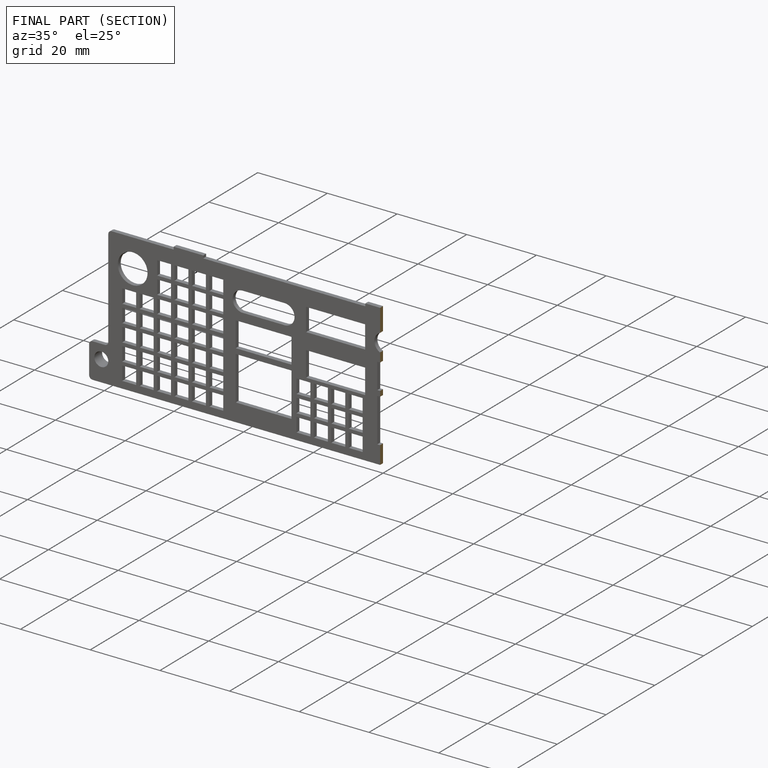
[diagram: finished part — half-section view (interior)]
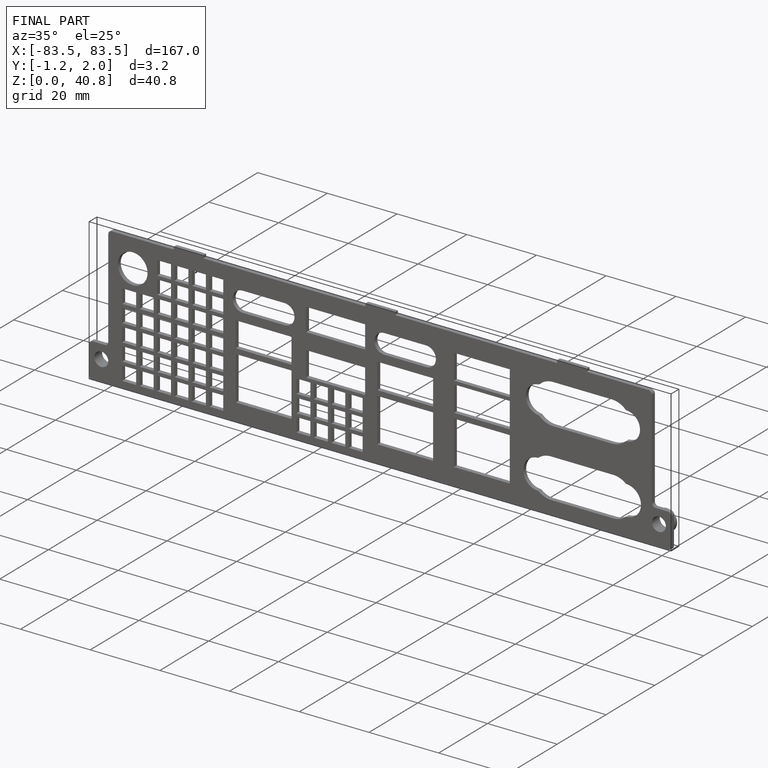
[diagram: finished part — iso view with bounding-box wireframe]
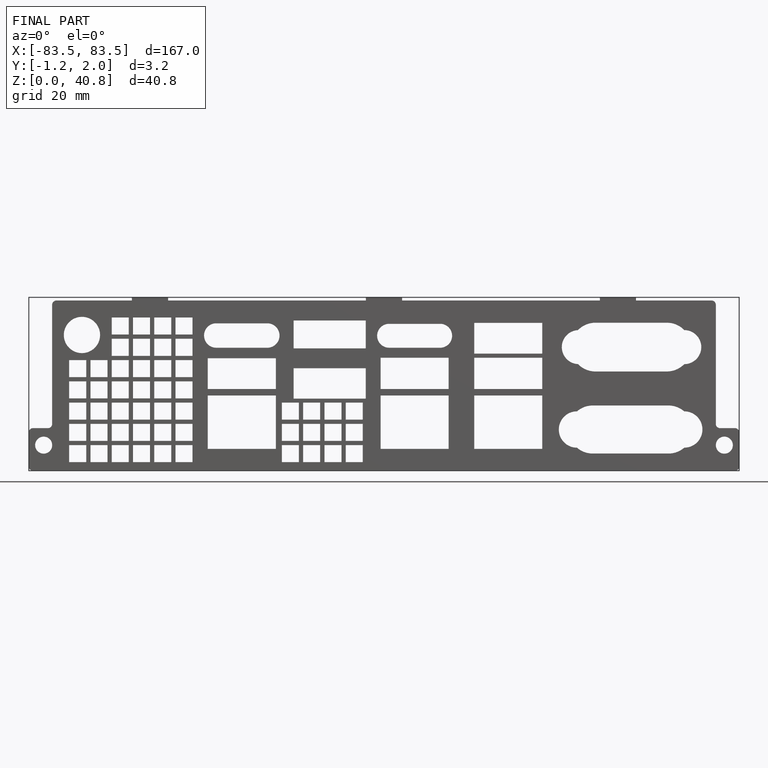
[diagram: finished part — front view with bounding-box wireframe]
